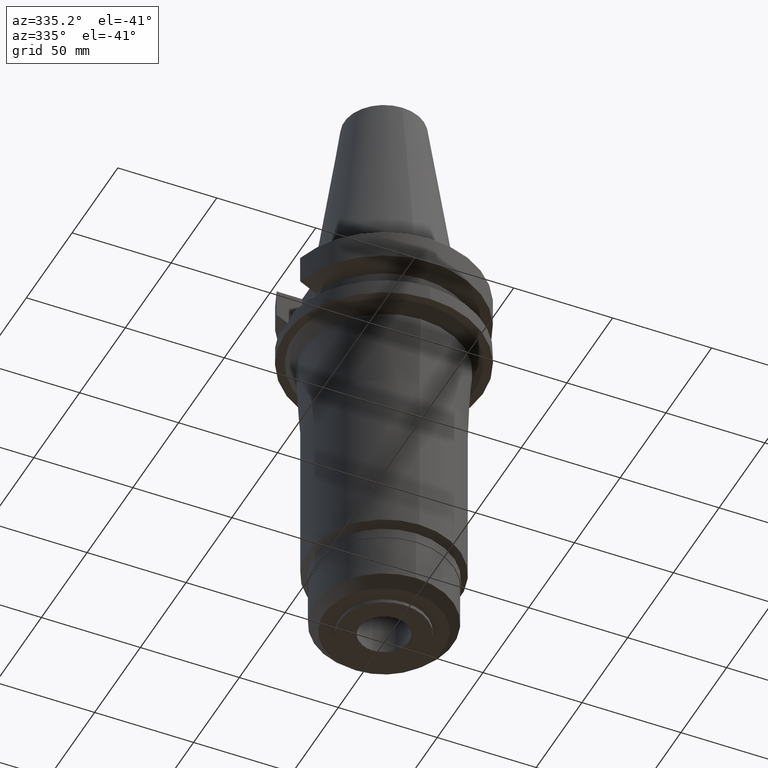
[diagram: clean part render]
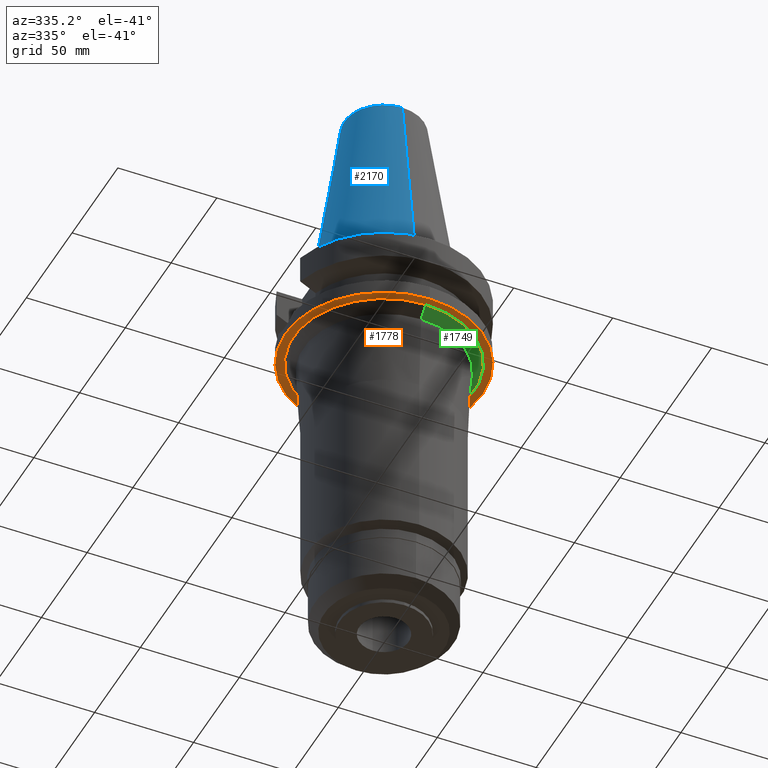
[diagram: same view with three faces highlighted in distinct colors, each labeled with its STEP entity id]
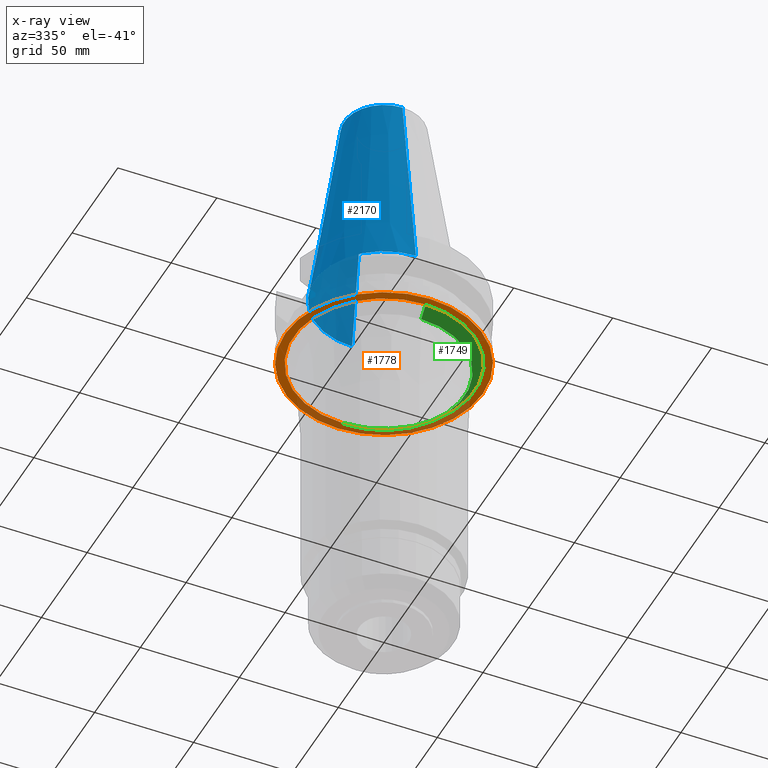
[diagram: x-ray of the same camera — body ghosted, the three highlighted faces saturated]
A machine part, auxiliary view with three faces highlighted in distinct colors.
The next image is the same camera in x-ray (body ghosted, the three faces saturated) — at least one of them is partly hidden behind the body in this view.
Their STEP definitions:

[orange] entity #1778 — the highlighted planar face has unit normal (0, 0, -1).
#488=CARTESIAN_POINT('',(0.E0,2.657606018830E-14,-3.8E1));
#489=DIRECTION('',(0.E0,0.E0,1.E0));
#490=DIRECTION('',(0.E0,-1.E0,0.E0));
#491=AXIS2_PLACEMENT_3D('',#488,#489,#490);
#496=CARTESIAN_POINT('',(0.E0,2.657606018830E-14,-3.8E1));
#497=DIRECTION('',(0.E0,0.E0,1.E0));
#498=DIRECTION('',(0.E0,1.E0,0.E0));
#499=AXIS2_PLACEMENT_3D('',#496,#497,#498);
#504=CARTESIAN_POINT('',(0.E0,0.E0,-3.8E1));
#505=DIRECTION('',(0.E0,0.E0,-1.E0));
#506=DIRECTION('',(0.E0,-1.E0,0.E0));
#507=AXIS2_PLACEMENT_3D('',#504,#505,#506);
#512=CARTESIAN_POINT('',(0.E0,0.E0,-3.8E1));
#513=DIRECTION('',(0.E0,0.E0,-1.E0));
#514=DIRECTION('',(0.E0,1.E0,0.E0));
#515=AXIS2_PLACEMENT_3D('',#512,#513,#514);
#1204=CARTESIAN_POINT('',(0.E0,4.565114280430E1,-3.8E1));
#1205=VERTEX_POINT('',#1204);
#1206=CARTESIAN_POINT('',(0.E0,-4.565114280430E1,-3.8E1));
#1207=VERTEX_POINT('',#1206);
#1208=CARTESIAN_POINT('',(0.E0,-5.E1,-3.8E1));
#1209=CARTESIAN_POINT('',(0.E0,5.E1,-3.8E1));
#1210=VERTEX_POINT('',#1208);
#1211=VERTEX_POINT('',#1209);
#1763=CARTESIAN_POINT('',(0.E0,0.E0,-3.8E1));
#1764=DIRECTION('',(0.E0,0.E0,-1.E0));
#1765=DIRECTION('',(0.E0,-1.E0,0.E0));
#1766=AXIS2_PLACEMENT_3D('',#1763,#1764,#1765);
#1767=PLANE('',#1766);
#1769=ORIENTED_EDGE('',*,*,#1768,.T.);
#1771=ORIENTED_EDGE('',*,*,#1770,.T.);
#1772=EDGE_LOOP('',(#1769,#1771));
#1773=FACE_OUTER_BOUND('',#1772,.F.);
#1774=ORIENTED_EDGE('',*,*,#1756,.T.);
#1775=ORIENTED_EDGE('',*,*,#1745,.T.);
#1776=EDGE_LOOP('',(#1774,#1775));
#1777=FACE_BOUND('',#1776,.F.);
#492=CIRCLE('',#491,5.E1);
#500=CIRCLE('',#499,5.E1);
#508=CIRCLE('',#507,4.565114280430E1);
#516=CIRCLE('',#515,4.565114280430E1);
#1745=EDGE_CURVE('',#1205,#1207,#516,.T.);
#1756=EDGE_CURVE('',#1207,#1205,#508,.T.);
#1768=EDGE_CURVE('',#1210,#1211,#492,.T.);
#1770=EDGE_CURVE('',#1211,#1210,#500,.T.);
#1778=ADVANCED_FACE('',(#1773,#1777),#1767,.T.);

[blue] entity #2170 — the highlighted conical surface has half-angle 8.297 deg.
#1066=DIRECTION('',(0.E0,-1.443043893539E-1,-9.895333461856E-1));
#1067=VECTOR('',#1066,1.028767755957E2);
#1068=CARTESIAN_POINT('',(0.E0,-2.007942971896E1,1.018E2));
#1069=LINE('',#1068,#1067);
#1073=CARTESIAN_POINT('',(0.E0,1.847992019913E-14,3.979039320257E-13));
#1074=DIRECTION('',(0.E0,0.E0,-1.E0));
#1075=DIRECTION('',(0.E0,-1.E0,0.E0));
#1076=AXIS2_PLACEMENT_3D('',#1073,#1074,#1075);
#1081=DIRECTION('',(0.E0,1.443043893539E-1,-9.895333461856E-1));
#1082=VECTOR('',#1081,1.028767755957E2);
#1083=CARTESIAN_POINT('',(0.E0,2.007942971896E1,1.018E2));
#1084=LINE('',#1083,#1082);
#1096=CARTESIAN_POINT('',(0.E0,1.847992019913E-14,1.018E2));
#1097=DIRECTION('',(0.E0,0.E0,-1.E0));
#1098=DIRECTION('',(0.E0,-1.E0,0.E0));
#1099=AXIS2_PLACEMENT_3D('',#1096,#1097,#1098);
#1285=CARTESIAN_POINT('',(0.E0,3.4925E1,5.471179065353E-13));
#1286=VERTEX_POINT('',#1285);
#1287=CARTESIAN_POINT('',(0.E0,-3.4925E1,5.471179065353E-13));
#1288=VERTEX_POINT('',#1287);
#1289=CARTESIAN_POINT('',(0.E0,2.007942971896E1,1.018E2));
#1290=VERTEX_POINT('',#1289);
#1291=CARTESIAN_POINT('',(0.E0,-2.007942971896E1,1.018E2));
#1292=VERTEX_POINT('',#1291);
#2156=CARTESIAN_POINT('',(0.E0,1.847992019913E-14,5.09E1));
#2157=DIRECTION('',(0.E0,0.E0,-1.E0));
#2158=DIRECTION('',(0.E0,-1.E0,0.E0));
#2159=AXIS2_PLACEMENT_3D('',#2156,#2157,#2158);
#2160=CONICAL_SURFACE('',#2159,2.750221485948E1,8.297E0);
#2162=ORIENTED_EDGE('',*,*,#2161,.F.);
#2164=ORIENTED_EDGE('',*,*,#2163,.F.);
#2166=ORIENTED_EDGE('',*,*,#2165,.T.);
#2167=ORIENTED_EDGE('',*,*,#2149,.T.);
#2168=EDGE_LOOP('',(#2162,#2164,#2166,#2167));
#2169=FACE_OUTER_BOUND('',#2168,.F.);
#1077=CIRCLE('',#1076,3.4925E1);
#1100=CIRCLE('',#1099,2.007942971896E1);
#2149=EDGE_CURVE('',#1288,#1286,#1077,.T.);
#2161=EDGE_CURVE('',#1290,#1286,#1084,.T.);
#2163=EDGE_CURVE('',#1292,#1290,#1100,.T.);
#2165=EDGE_CURVE('',#1292,#1288,#1069,.T.);
#2170=ADVANCED_FACE('',(#2169),#2160,.T.);

[green] entity #1749 — the highlighted conical surface has half-angle 45 deg.
#458=CARTESIAN_POINT('',(0.E0,0.E0,-4.3E1));
#459=DIRECTION('',(0.E0,0.E0,1.E0));
#460=DIRECTION('',(0.E0,-1.E0,0.E0));
#461=AXIS2_PLACEMENT_3D('',#458,#459,#460);
#466=DIRECTION('',(0.E0,-7.071067811866E-1,-7.071067811865E-1));
#467=VECTOR('',#466,7.071067811866E0);
#468=CARTESIAN_POINT('',(0.E0,4.565114280430E1,-3.8E1));
#469=LINE('',#468,#467);
#473=DIRECTION('',(0.E0,7.071067811866E-1,-7.071067811865E-1));
#474=VECTOR('',#473,7.071067811866E0);
#475=CARTESIAN_POINT('',(0.E0,-4.565114280430E1,-3.8E1));
#476=LINE('',#475,#474);
#512=CARTESIAN_POINT('',(0.E0,0.E0,-3.8E1));
#513=DIRECTION('',(0.E0,0.E0,-1.E0));
#514=DIRECTION('',(0.E0,1.E0,0.E0));
#515=AXIS2_PLACEMENT_3D('',#512,#513,#514);
#1200=CARTESIAN_POINT('',(0.E0,4.065114280430E1,-4.3E1));
#1201=VERTEX_POINT('',#1200);
#1202=CARTESIAN_POINT('',(0.E0,-4.065114280430E1,-4.3E1));
#1203=VERTEX_POINT('',#1202);
#1204=CARTESIAN_POINT('',(0.E0,4.565114280430E1,-3.8E1));
#1205=VERTEX_POINT('',#1204);
#1206=CARTESIAN_POINT('',(0.E0,-4.565114280430E1,-3.8E1));
#1207=VERTEX_POINT('',#1206);
#1735=CARTESIAN_POINT('',(0.E0,0.E0,-4.05E1));
#1736=DIRECTION('',(0.E0,0.E0,1.E0));
#1737=DIRECTION('',(0.E0,1.E0,0.E0));
#1738=AXIS2_PLACEMENT_3D('',#1735,#1736,#1737);
#1739=CONICAL_SURFACE('',#1738,4.315114280430E1,4.5E1);
#1741=ORIENTED_EDGE('',*,*,#1740,.T.);
#1742=ORIENTED_EDGE('',*,*,#1730,.F.);
#1744=ORIENTED_EDGE('',*,*,#1743,.F.);
#1746=ORIENTED_EDGE('',*,*,#1745,.F.);
#1747=EDGE_LOOP('',(#1741,#1742,#1744,#1746));
#1748=FACE_OUTER_BOUND('',#1747,.F.);
#462=CIRCLE('',#461,4.065114280430E1);
#516=CIRCLE('',#515,4.565114280430E1);
#1730=EDGE_CURVE('',#1203,#1201,#462,.T.);
#1740=EDGE_CURVE('',#1205,#1201,#469,.T.);
#1743=EDGE_CURVE('',#1207,#1203,#476,.T.);
#1745=EDGE_CURVE('',#1205,#1207,#516,.T.);
#1749=ADVANCED_FACE('',(#1748),#1739,.T.);